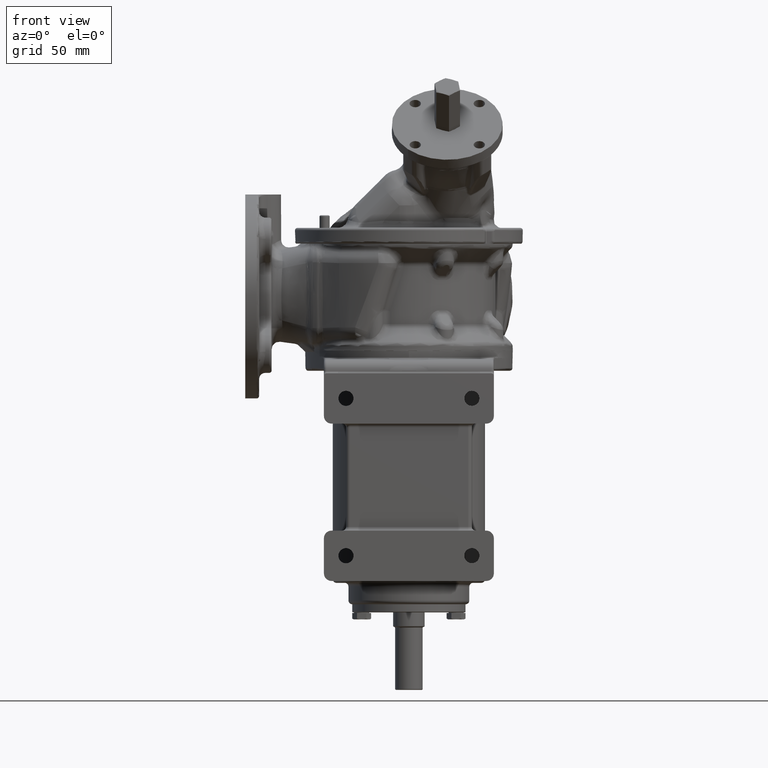
[diagram: clean part render]
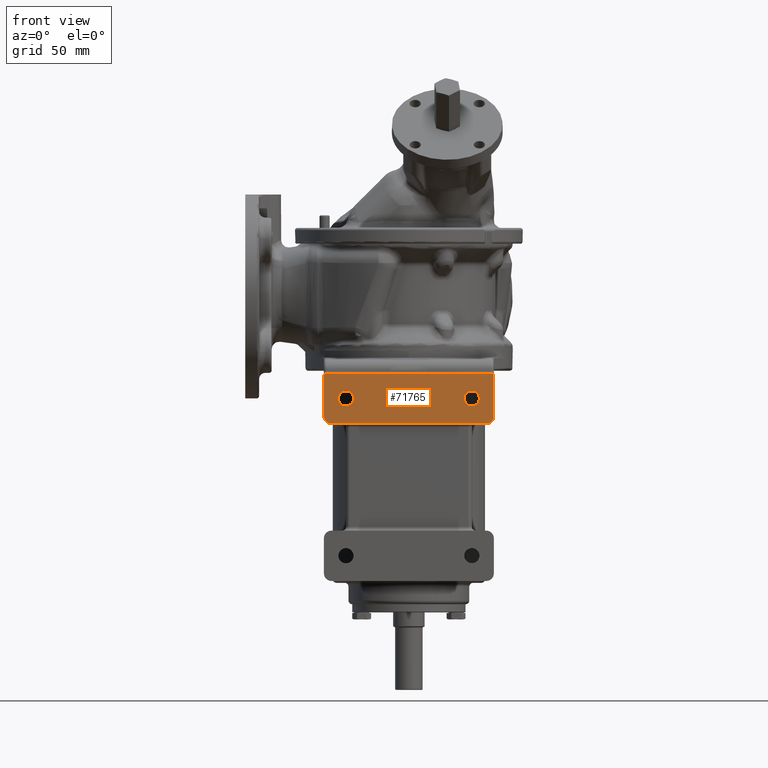
[diagram: same view with one face highlighted and labeled with its STEP entity id]
A machine part, front view. The second image highlights one B-rep face of the part: STEP entity #71765.
In plain terms, the highlighted planar face has unit normal (0, -1, 0).
Its self-contained STEP definition (entity closure, byte-faithful):
#17126=DIRECTION('',(0.E0,0.E0,-1.E0));
#17127=VECTOR('',#17126,3.2E1);
#17128=CARTESIAN_POINT('',(-6.75E1,-1.E2,-1.4E1));
#17129=LINE('',#17128,#17127);
#17179=CARTESIAN_POINT('',(-5.E1,-1.E2,-3.2E1));
#17180=DIRECTION('',(0.E0,-1.E0,0.E0));
#17181=DIRECTION('',(0.E0,0.E0,1.E0));
#17182=AXIS2_PLACEMENT_3D('',#17179,#17180,#17181);
#17184=CARTESIAN_POINT('',(-5.E1,-1.E2,-3.2E1));
#17185=DIRECTION('',(0.E0,-1.E0,0.E0));
#17186=DIRECTION('',(0.E0,0.E0,-1.E0));
#17187=AXIS2_PLACEMENT_3D('',#17184,#17185,#17186);
#17189=CARTESIAN_POINT('',(5.E1,-1.E2,-3.2E1));
#17190=DIRECTION('',(0.E0,-1.E0,0.E0));
#17191=DIRECTION('',(0.E0,0.E0,1.E0));
#17192=AXIS2_PLACEMENT_3D('',#17189,#17190,#17191);
#17194=CARTESIAN_POINT('',(5.E1,-1.E2,-3.2E1));
#17195=DIRECTION('',(0.E0,-1.E0,0.E0));
#17196=DIRECTION('',(0.E0,0.E0,-1.E0));
#17197=AXIS2_PLACEMENT_3D('',#17194,#17195,#17196);
#17199=DIRECTION('',(0.E0,0.E0,1.E0));
#17200=VECTOR('',#17199,3.2E1);
#17201=CARTESIAN_POINT('',(6.75E1,-1.E2,-4.6E1));
#17202=LINE('',#17201,#17200);
#17252=CARTESIAN_POINT('',(6.55E1,-1.E2,-1.4E1));
#17253=DIRECTION('',(0.E0,1.E0,0.E0));
#17254=DIRECTION('',(0.E0,0.E0,1.E0));
#17255=AXIS2_PLACEMENT_3D('',#17252,#17253,#17254);
#17257=DIRECTION('',(-1.E0,0.E0,0.E0));
#17258=VECTOR('',#17257,1.31E2);
#17259=CARTESIAN_POINT('',(6.55E1,-1.E2,-1.2E1));
#17260=LINE('',#17259,#17258);
#17273=CARTESIAN_POINT('',(-6.55E1,-1.E2,-1.4E1));
#17274=DIRECTION('',(0.E0,1.E0,0.E0));
#17275=DIRECTION('',(-1.E0,0.E0,0.E0));
#17276=AXIS2_PLACEMENT_3D('',#17273,#17274,#17275);
#17850=CARTESIAN_POINT('',(-6.15E1,-1.E2,-4.6E1));
#17851=DIRECTION('',(0.E0,1.E0,0.E0));
#17852=DIRECTION('',(0.E0,0.E0,-1.E0));
#17853=AXIS2_PLACEMENT_3D('',#17850,#17851,#17852);
#17855=DIRECTION('',(1.E0,0.E0,0.E0));
#17856=VECTOR('',#17855,1.23E2);
#17857=CARTESIAN_POINT('',(-6.15E1,-1.E2,-5.2E1));
#17858=LINE('',#17857,#17856);
#17897=CARTESIAN_POINT('',(6.15E1,-1.E2,-4.6E1));
#17898=DIRECTION('',(0.E0,1.E0,0.E0));
#17899=DIRECTION('',(1.E0,0.E0,0.E0));
#17900=AXIS2_PLACEMENT_3D('',#17897,#17898,#17899);
#22992=CARTESIAN_POINT('',(6.75E1,-1.E2,-4.6E1));
#22993=CARTESIAN_POINT('',(6.75E1,-1.E2,-1.4E1));
#22994=VERTEX_POINT('',#22992);
#22995=VERTEX_POINT('',#22993);
#22996=CARTESIAN_POINT('',(6.55E1,-1.E2,-1.2E1));
#22997=CARTESIAN_POINT('',(-6.55E1,-1.E2,-1.2E1));
#22998=VERTEX_POINT('',#22996);
#22999=VERTEX_POINT('',#22997);
#23000=CARTESIAN_POINT('',(-6.75E1,-1.E2,-1.4E1));
#23001=CARTESIAN_POINT('',(-6.75E1,-1.E2,-4.6E1));
#23002=VERTEX_POINT('',#23000);
#23003=VERTEX_POINT('',#23001);
#23004=CARTESIAN_POINT('',(-6.15E1,-1.E2,-5.2E1));
#23005=CARTESIAN_POINT('',(6.15E1,-1.E2,-5.2E1));
#23006=VERTEX_POINT('',#23004);
#23007=VERTEX_POINT('',#23005);
#23012=CARTESIAN_POINT('',(-5.E1,-1.E2,-2.6E1));
#23013=CARTESIAN_POINT('',(-5.E1,-1.E2,-3.8E1));
#23014=VERTEX_POINT('',#23012);
#23015=VERTEX_POINT('',#23013);
#23020=CARTESIAN_POINT('',(5.E1,-1.E2,-2.6E1));
#23021=CARTESIAN_POINT('',(5.E1,-1.E2,-3.8E1));
#23022=VERTEX_POINT('',#23020);
#23023=VERTEX_POINT('',#23021);
#71731=CARTESIAN_POINT('',(0.E0,-1.E2,0.E0));
#71732=DIRECTION('',(0.E0,-1.E0,0.E0));
#71733=DIRECTION('',(0.E0,0.E0,1.E0));
#71734=AXIS2_PLACEMENT_3D('',#71731,#71732,#71733);
#71735=PLANE('',#71734);
#71737=ORIENTED_EDGE('',*,*,#71736,.F.);
#71739=ORIENTED_EDGE('',*,*,#71738,.T.);
#71741=ORIENTED_EDGE('',*,*,#71740,.F.);
#71743=ORIENTED_EDGE('',*,*,#71742,.T.);
#71744=ORIENTED_EDGE('',*,*,#71708,.F.);
#71746=ORIENTED_EDGE('',*,*,#71745,.T.);
#71748=ORIENTED_EDGE('',*,*,#71747,.F.);
#71750=ORIENTED_EDGE('',*,*,#71749,.T.);
#71751=EDGE_LOOP('',(#71737,#71739,#71741,#71743,#71744,#71746,#71748,#71750));
#71752=FACE_OUTER_BOUND('',#71751,.F.);
#71754=ORIENTED_EDGE('',*,*,#71753,.T.);
#71756=ORIENTED_EDGE('',*,*,#71755,.T.);
#71757=EDGE_LOOP('',(#71754,#71756));
#71758=FACE_BOUND('',#71757,.F.);
#71760=ORIENTED_EDGE('',*,*,#71759,.T.);
#71762=ORIENTED_EDGE('',*,*,#71761,.T.);
#71763=EDGE_LOOP('',(#71760,#71762));
#71764=FACE_BOUND('',#71763,.F.);
#71765=ADVANCED_FACE('',(#71752,#71758,#71764),#71735,.T.);
#17183=CIRCLE('',#17182,6.E0);
#17188=CIRCLE('',#17187,6.E0);
#17193=CIRCLE('',#17192,6.E0);
#17198=CIRCLE('',#17197,6.E0);
#17256=CIRCLE('',#17255,2.E0);
#17277=CIRCLE('',#17276,2.E0);
#17854=CIRCLE('',#17853,6.E0);
#17901=CIRCLE('',#17900,6.E0);
#71708=EDGE_CURVE('',#23002,#23003,#17129,.T.);
#71736=EDGE_CURVE('',#22994,#22995,#17202,.T.);
#71738=EDGE_CURVE('',#22994,#23007,#17901,.T.);
#71740=EDGE_CURVE('',#23006,#23007,#17858,.T.);
#71742=EDGE_CURVE('',#23006,#23003,#17854,.T.);
#71745=EDGE_CURVE('',#23002,#22999,#17277,.T.);
#71747=EDGE_CURVE('',#22998,#22999,#17260,.T.);
#71749=EDGE_CURVE('',#22998,#22995,#17256,.T.);
#71753=EDGE_CURVE('',#23014,#23015,#17183,.T.);
#71755=EDGE_CURVE('',#23015,#23014,#17188,.T.);
#71759=EDGE_CURVE('',#23022,#23023,#17193,.T.);
#71761=EDGE_CURVE('',#23023,#23022,#17198,.T.);